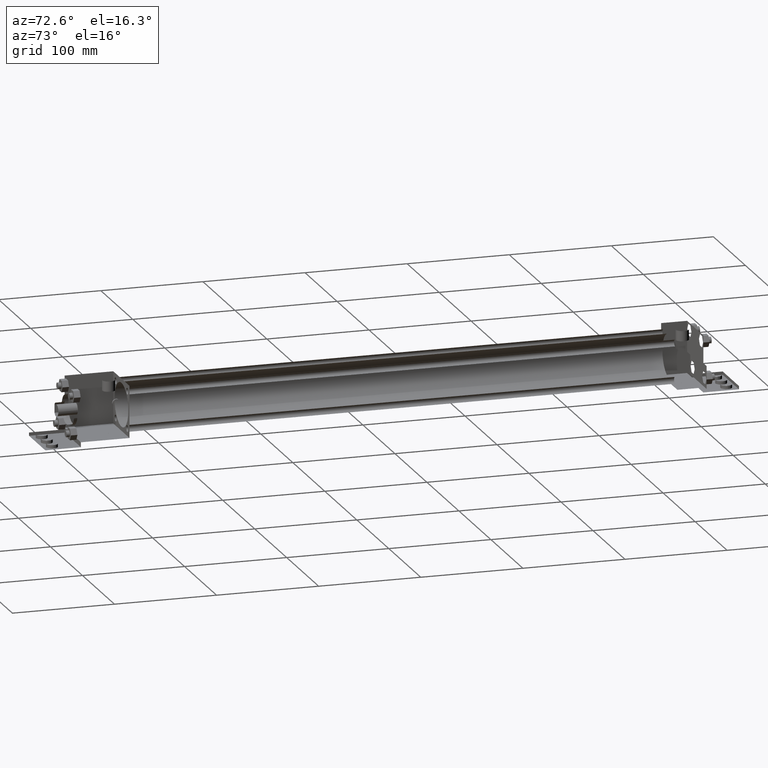
[diagram: clean part render]
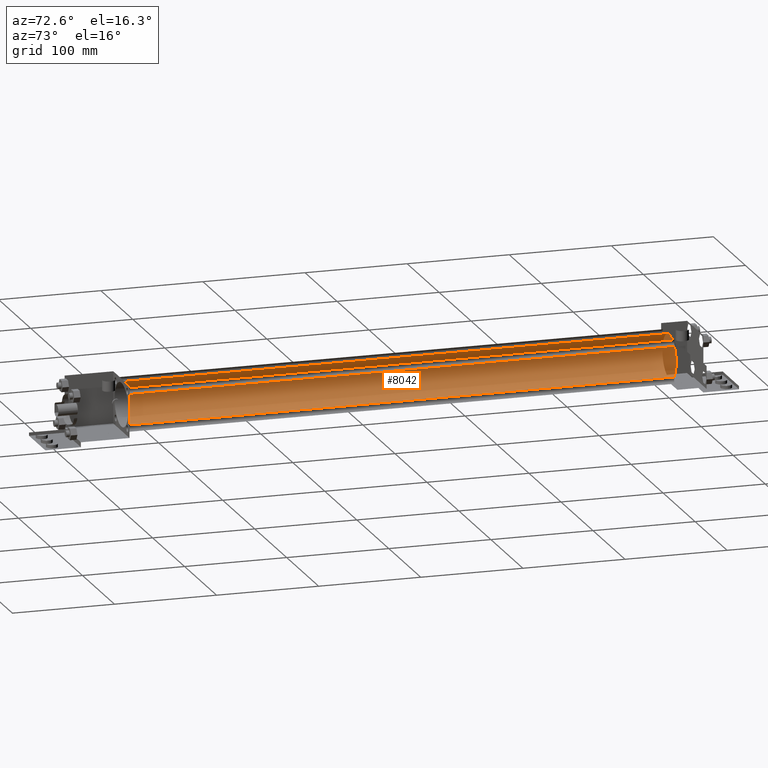
[diagram: same view with one face highlighted and labeled with its STEP entity id]
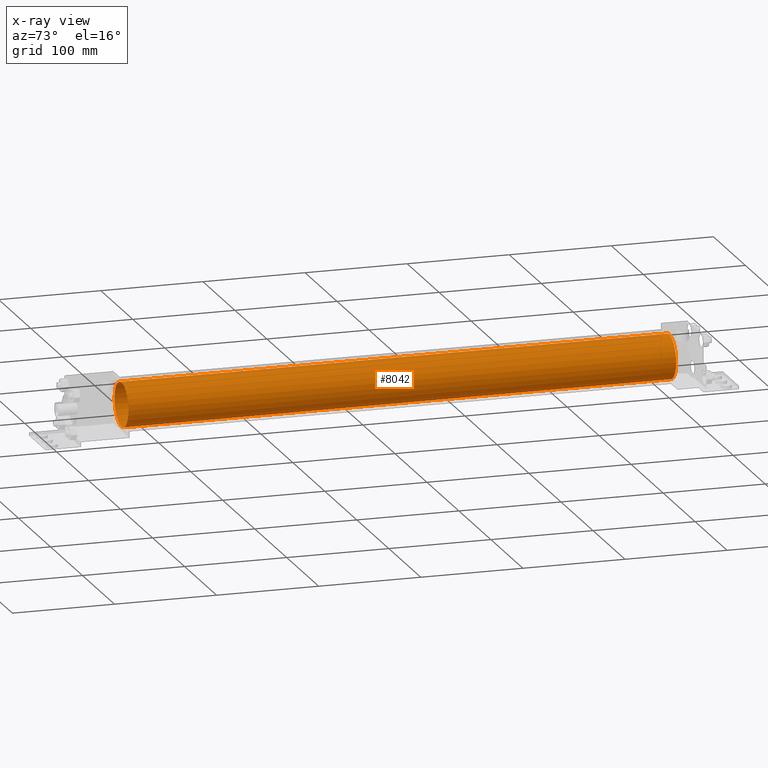
[diagram: x-ray of the same camera — body ghosted, the highlighted face saturated]
A machine part, auxiliary view. The second image highlights one B-rep face of the part: STEP entity #8042.
The next image is the same camera in x-ray: the body ghosted, the highlighted face saturated — about 0% of this face is hidden behind the body in this view.
In plain terms, the highlighted cylindrical surface (bore or boss wall) has radius 21.463 mm, axis along (0, -1, 0).
Its self-contained STEP definition (entity closure, byte-faithful):
#536=EDGE_CURVE('',#542,#542,#537,.T.);
#537=CIRCLE('',#538,2.146300000E+001);
#538=AXIS2_PLACEMENT_3D('',#539,#540,#541);
#539=CARTESIAN_POINT('',(0.000000000E+000,6.350000000E+001,0.000000000E+000));
#540=DIRECTION('',(0.0E+000,1.0E+000,0.0E+000));
#541=DIRECTION('',(-1.0E+000,0.0E+000,0.0E+000));
#542=VERTEX_POINT('',#543);
#543=CARTESIAN_POINT('',(-2.146300000E+001,6.350000000E+001,0.000000000E+000));
#1359=FACE_OUTER_BOUND('',#1361,.T.);
#1360=FACE_BOUND('',#1362,.T.);
#1361=EDGE_LOOP('',(#1363));
#1362=EDGE_LOOP('',(#1372));
#1363=ORIENTED_EDGE('',*,*,#1364,.F.);
#1364=EDGE_CURVE('',#1370,#1370,#1365,.T.);
#1365=CIRCLE('',#1366,2.146300000E+001);
#1366=AXIS2_PLACEMENT_3D('',#1367,#1368,#1369);
#1367=CARTESIAN_POINT('',(0.000000000E+000,6.000750000E+002,0.000000000E+000));
#1368=DIRECTION('',(0.0E+000,1.0E+000,0.0E+000));
#1369=DIRECTION('',(1.0E+000,0.0E+000,0.0E+000));
#1370=VERTEX_POINT('',#1371);
#1371=CARTESIAN_POINT('',(2.146300000E+001,6.000750000E+002,0.000000000E+000));
#1372=ORIENTED_EDGE('',*,*,#536,.T.);
#1373=CYLINDRICAL_SURFACE('',#1374,2.146300000E+001);
#1374=AXIS2_PLACEMENT_3D('',#1375,#1376,#1377);
#1375=CARTESIAN_POINT('',(0.000000000E+000,6.000750000E+002,0.000000000E+000));
#1376=DIRECTION('',(0.0E+000,-1.0E+000,0.0E+000));
#1377=DIRECTION('',(0.0E+000,0.0E+000,-1.0E+000));
#8042=ADVANCED_FACE('',(#1359,#1360),#1373,.T.);